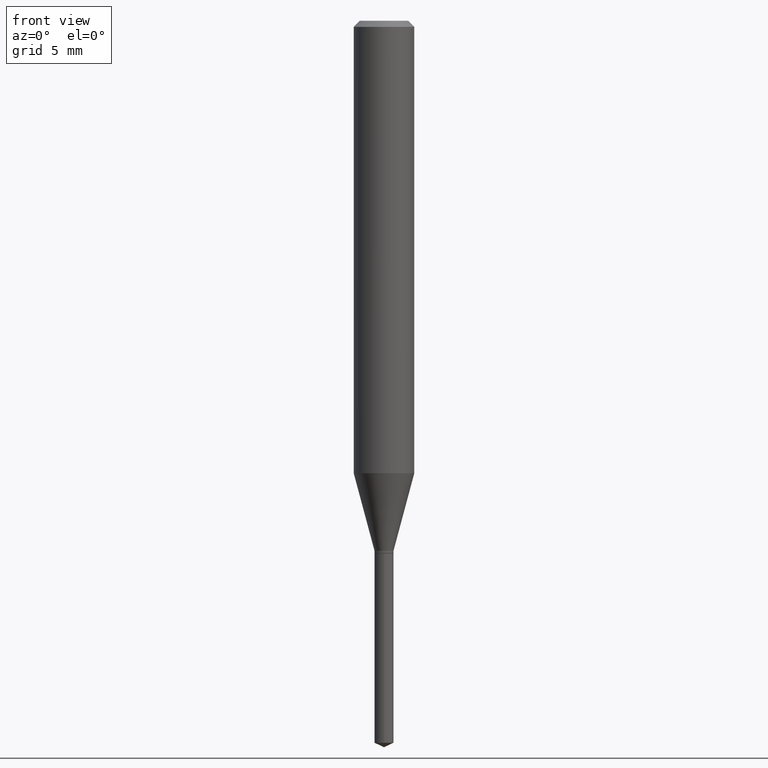
[diagram: clean part render]
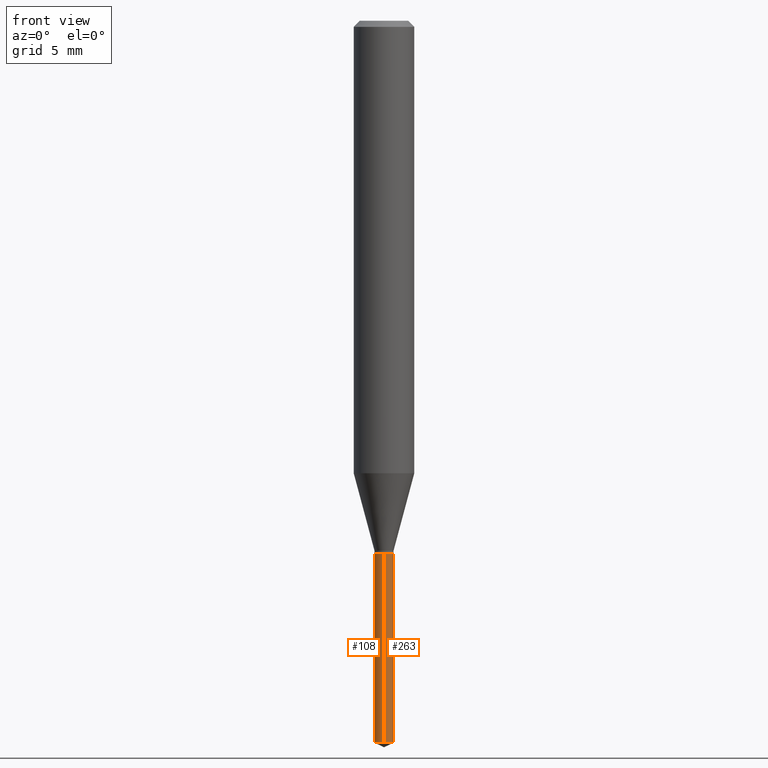
[diagram: same view with one multi-face feature highlighted, each face labeled with its STEP entity id]
A machine part, front view. The highlighted faces form ONE feature: a constant-radius fillet chain: 2 tangent blend faces with common blend radius 0.5004 mm. The faces share edges in the B-rep.
Their STEP definitions:
[1] entity #108 (Cylinder):
#15 = EDGE_LOOP ( 'NONE', ( #194, #472, #193, #134 ) ) ;
#26 = EDGE_CURVE ( 'NONE', #425, #213, #326, .T. ) ;
#32 = DIRECTION ( 'NONE',  ( -2.442957897581693293E-29, 3.495077102875319228E-15, 1.000000000000000000 ) ) ;
#40 = LINE ( 'NONE', #379, #84 ) ;
#84 = VECTOR ( 'NONE', #219, 39.37007874015748143 ) ;
#94 = FACE_OUTER_BOUND ( 'NONE', #15, .T. ) ;
#98 = VERTEX_POINT ( 'NONE', #476 ) ;
#108 = ADVANCED_FACE ( 'NONE', ( #94 ), #438, .T. ) ;
#111 = CARTESIAN_POINT ( 'NONE',  ( 1.399769189447761387E-16, 0.01969999999999479112, -1.490813739134346783 ) ) ;
#134 = ORIENTED_EDGE ( 'NONE', *, *, #226, .F. ) ;
#143 = CIRCLE ( 'NONE', #236, 0.01969999999999999876 ) ;
#188 = AXIS2_PLACEMENT_3D ( 'NONE', #384, #261, #298 ) ;
#193 = ORIENTED_EDGE ( 'NONE', *, *, #443, .T. ) ;
#194 = ORIENTED_EDGE ( 'NONE', *, *, #26, .F. ) ;
#213 = VERTEX_POINT ( 'NONE', #254 ) ;
#219 = DIRECTION ( 'NONE',  ( -2.442957897581693293E-29, 3.495077102875319228E-15, 1.000000000000000000 ) ) ;
#226 = EDGE_CURVE ( 'NONE', #213, #98, #143, .T. ) ;
#236 = AXIS2_PLACEMENT_3D ( 'NONE', #246, #489, #437 ) ;
#246 = CARTESIAN_POINT ( 'NONE',  ( 2.690015686803650369E-29, -3.840629472727460101E-15, -1.100000000000000089 ) ) ;
#249 = CARTESIAN_POINT ( 'NONE',  ( 2.690015686803650369E-29, -3.840629472727460101E-15, -1.100000000000000089 ) ) ;
#252 = DIRECTION ( 'NONE',  ( -6.982962677686265133E-15, -1.000000000000000000, 6.933624349401683764E-15 ) ) ;
#254 = CARTESIAN_POINT ( 'NONE',  ( 1.399769189447762373E-16, 0.01969999999999615461, -1.100000000000000089 ) ) ;
#258 = CARTESIAN_POINT ( 'NONE',  ( 1.399769189447665984E-16, 0.01969999999999615461, -1.100000000000000089 ) ) ;
#260 = DIRECTION ( 'NONE',  ( -2.442957897581693293E-29, 3.495077102875318834E-15, 1.000000000000000000 ) ) ;
#261 = DIRECTION ( 'NONE',  ( -2.442957897581693293E-29, 3.495077102875318834E-15, 1.000000000000000000 ) ) ;
#274 = VECTOR ( 'NONE', #32, 39.37007874015748143 ) ;
#298 = DIRECTION ( 'NONE',  ( -6.982962677686265133E-15, -1.000000000000000000, 0.000000000000000000 ) ) ;
#315 = VERTEX_POINT ( 'NONE', #327 ) ;
#326 = LINE ( 'NONE', #258, #274 ) ;
#327 = CARTESIAN_POINT ( 'NONE',  ( -1.375643647503830007E-16, -0.01970000000000520640, -1.490813739134346783 ) ) ;
#378 = AXIS2_PLACEMENT_3D ( 'NONE', #249, #260, #252 ) ;
#379 = CARTESIAN_POINT ( 'NONE',  ( -1.375643647503925164E-16, -0.01970000000000383944, -1.099999999999999867 ) ) ;
#384 = CARTESIAN_POINT ( 'NONE',  ( 3.644757197305334190E-29, -5.206553623865002220E-15, -1.490813739134346783 ) ) ;
#387 = CIRCLE ( 'NONE', #188, 0.01969999999999999876 ) ;
#425 = VERTEX_POINT ( 'NONE', #111 ) ;
#437 = DIRECTION ( 'NONE',  ( -6.982962677686265133E-15, -1.000000000000000000, 6.933624349401683764E-15 ) ) ;
#438 = CYLINDRICAL_SURFACE ( 'NONE', #378, 0.01969999999999999876 ) ;
#443 = EDGE_CURVE ( 'NONE', #315, #98, #40, .T. ) ;
#472 = ORIENTED_EDGE ( 'NONE', *, *, #481, .T. ) ;
#476 = CARTESIAN_POINT ( 'NONE',  ( -1.375643647503925164E-16, -0.01970000000000383944, -1.099999999999999867 ) ) ;
#481 = EDGE_CURVE ( 'NONE', #425, #315, #387, .T. ) ;
#489 = DIRECTION ( 'NONE',  ( -2.442957897581693293E-29, 3.495077102875318834E-15, 1.000000000000000000 ) ) ;
[2] entity #263 (Cylinder):
#3 = CARTESIAN_POINT ( 'NONE',  ( 3.644757197305334190E-29, -5.206553623865002220E-15, -1.490813739134346783 ) ) ;
#13 = CIRCLE ( 'NONE', #67, 0.01969999999999999876 ) ;
#19 = ORIENTED_EDGE ( 'NONE', *, *, #131, .T. ) ;
#26 = EDGE_CURVE ( 'NONE', #425, #213, #326, .T. ) ;
#31 = CARTESIAN_POINT ( 'NONE',  ( 2.690015686803650369E-29, -3.840629472727460101E-15, -1.100000000000000089 ) ) ;
#32 = DIRECTION ( 'NONE',  ( -2.442957897581693293E-29, 3.495077102875319228E-15, 1.000000000000000000 ) ) ;
#40 = LINE ( 'NONE', #379, #84 ) ;
#63 = ORIENTED_EDGE ( 'NONE', *, *, #443, .F. ) ;
#67 = AXIS2_PLACEMENT_3D ( 'NONE', #337, #383, #342 ) ;
#72 = CYLINDRICAL_SURFACE ( 'NONE', #400, 0.01969999999999999876 ) ;
#82 = EDGE_LOOP ( 'NONE', ( #19, #289, #139, #63 ) ) ;
#84 = VECTOR ( 'NONE', #219, 39.37007874015748143 ) ;
#98 = VERTEX_POINT ( 'NONE', #476 ) ;
#101 = AXIS2_PLACEMENT_3D ( 'NONE', #3, #455, #299 ) ;
#111 = CARTESIAN_POINT ( 'NONE',  ( 1.399769189447761387E-16, 0.01969999999999479112, -1.490813739134346783 ) ) ;
#115 = CIRCLE ( 'NONE', #101, 0.01969999999999999876 ) ;
#129 = DIRECTION ( 'NONE',  ( -2.442957897581693293E-29, 3.495077102875318834E-15, 1.000000000000000000 ) ) ;
#131 = EDGE_CURVE ( 'NONE', #315, #425, #115, .T. ) ;
#139 = ORIENTED_EDGE ( 'NONE', *, *, #429, .F. ) ;
#213 = VERTEX_POINT ( 'NONE', #254 ) ;
#219 = DIRECTION ( 'NONE',  ( -2.442957897581693293E-29, 3.495077102875319228E-15, 1.000000000000000000 ) ) ;
#254 = CARTESIAN_POINT ( 'NONE',  ( 1.399769189447762373E-16, 0.01969999999999615461, -1.100000000000000089 ) ) ;
#258 = CARTESIAN_POINT ( 'NONE',  ( 1.399769189447665984E-16, 0.01969999999999615461, -1.100000000000000089 ) ) ;
#263 = ADVANCED_FACE ( 'NONE', ( #362 ), #72, .T. ) ;
#274 = VECTOR ( 'NONE', #32, 39.37007874015748143 ) ;
#289 = ORIENTED_EDGE ( 'NONE', *, *, #26, .T. ) ;
#299 = DIRECTION ( 'NONE',  ( -6.982962677686265133E-15, -1.000000000000000000, 0.000000000000000000 ) ) ;
#315 = VERTEX_POINT ( 'NONE', #327 ) ;
#326 = LINE ( 'NONE', #258, #274 ) ;
#327 = CARTESIAN_POINT ( 'NONE',  ( -1.375643647503830007E-16, -0.01970000000000520640, -1.490813739134346783 ) ) ;
#337 = CARTESIAN_POINT ( 'NONE',  ( 2.690015686803650369E-29, -3.840629472727460101E-15, -1.100000000000000089 ) ) ;
#342 = DIRECTION ( 'NONE',  ( -6.982962677686265133E-15, -1.000000000000000000, 6.933624349401683764E-15 ) ) ;
#362 = FACE_OUTER_BOUND ( 'NONE', #82, .T. ) ;
#379 = CARTESIAN_POINT ( 'NONE',  ( -1.375643647503925164E-16, -0.01970000000000383944, -1.099999999999999867 ) ) ;
#383 = DIRECTION ( 'NONE',  ( -2.442957897581693293E-29, 3.495077102875318834E-15, 1.000000000000000000 ) ) ;
#400 = AXIS2_PLACEMENT_3D ( 'NONE', #31, #129, #403 ) ;
#403 = DIRECTION ( 'NONE',  ( -6.982962677686265133E-15, -1.000000000000000000, 6.933624349401683764E-15 ) ) ;
#425 = VERTEX_POINT ( 'NONE', #111 ) ;
#429 = EDGE_CURVE ( 'NONE', #98, #213, #13, .T. ) ;
#443 = EDGE_CURVE ( 'NONE', #315, #98, #40, .T. ) ;
#455 = DIRECTION ( 'NONE',  ( -2.442957897581693293E-29, 3.495077102875318834E-15, 1.000000000000000000 ) ) ;
#476 = CARTESIAN_POINT ( 'NONE',  ( -1.375643647503925164E-16, -0.01970000000000383944, -1.099999999999999867 ) ) ;